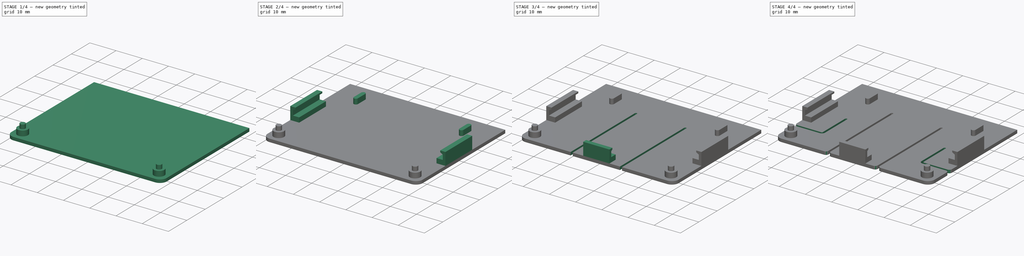
[diagram: build sequence overview — one tinted view per stage of 4, left to right]
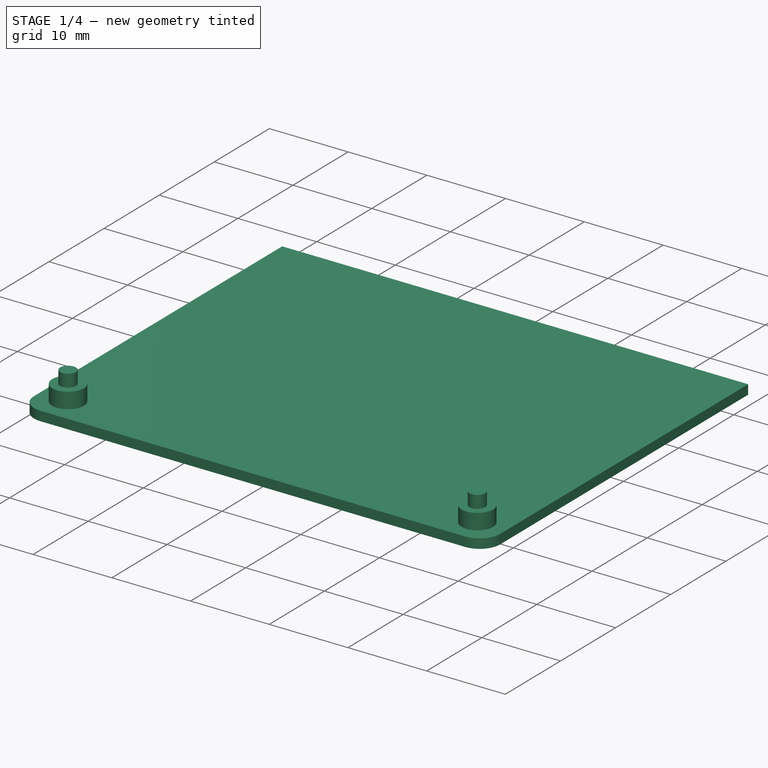
[diagram: stage 1 of 4 — iso view after this stage's code; geometry added in this stage tinted green]
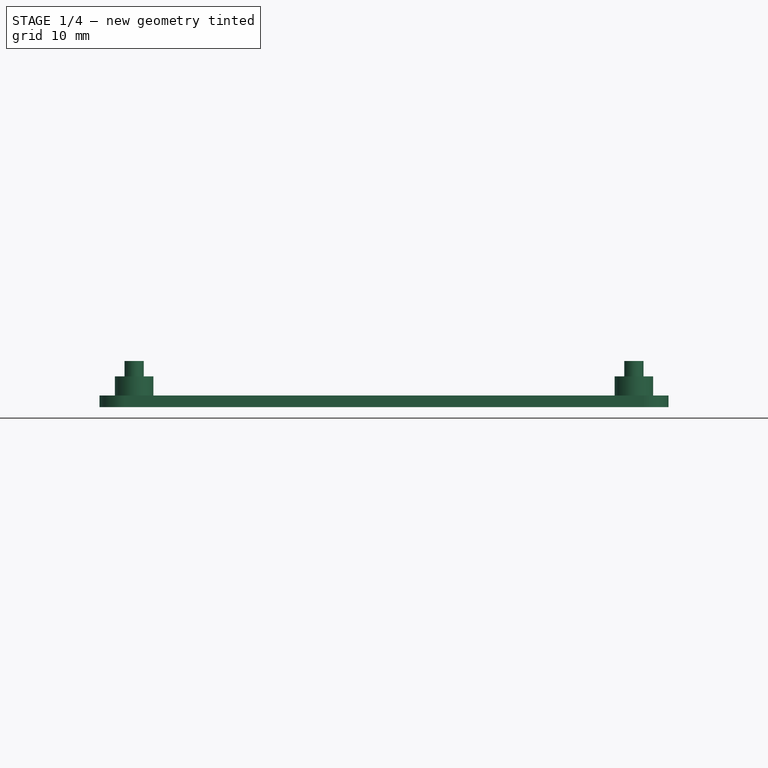
[diagram: stage 1 of 4 — front view after this stage's code; geometry added in this stage tinted green]
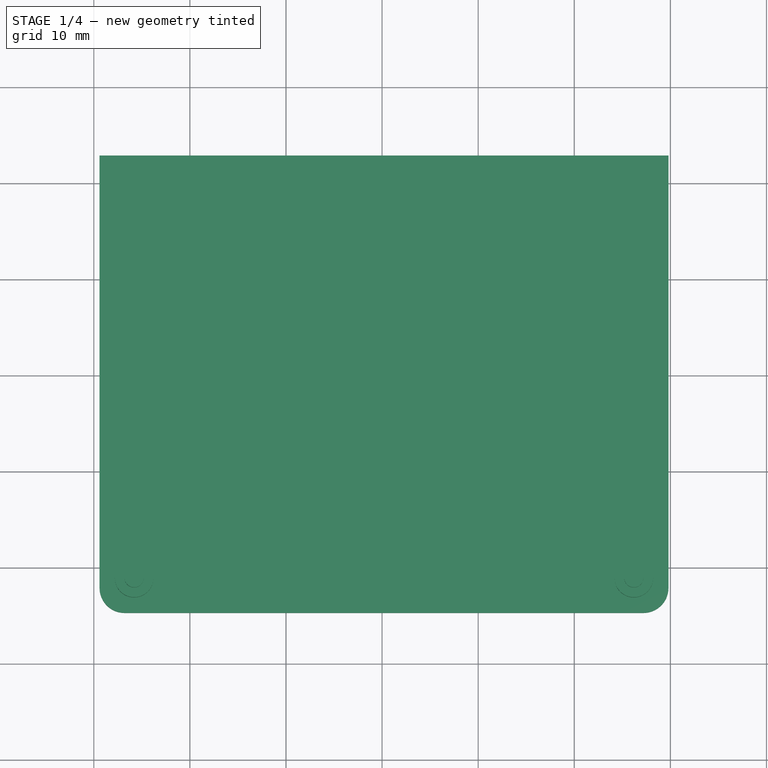
[diagram: stage 1 of 4 — top view after this stage's code; geometry added in this stage tinted green]
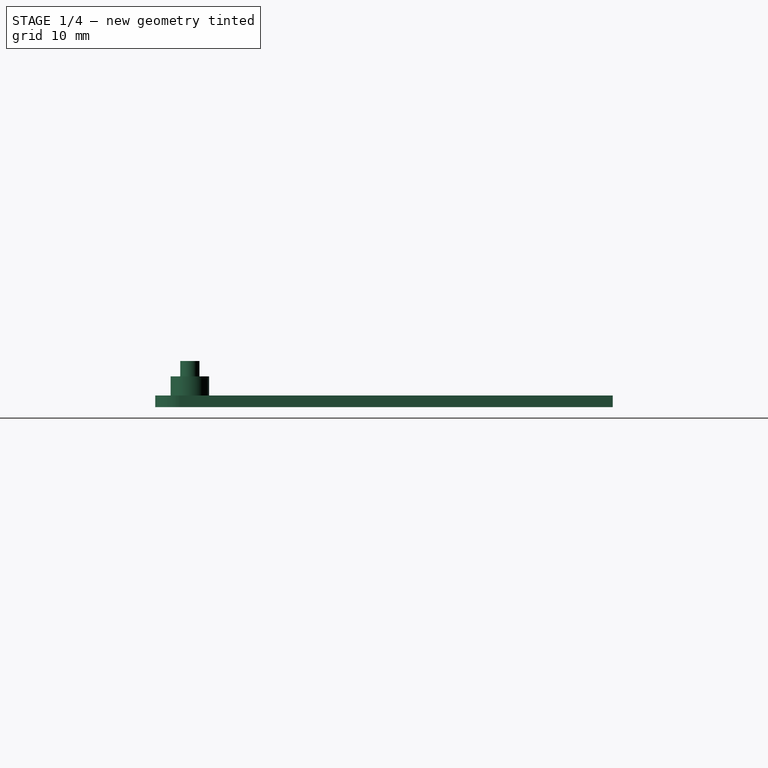
[diagram: stage 1 of 4 — right view after this stage's code; geometry added in this stage tinted green]
FCSTD DOCUMENT  (FreeCAD 0.20R29177 (Git))
Label: backplate
License: All rights reserved
LicenseURL: http://en.wikipedia.org/wiki/All_rights_reserved
objects: Sketcher::SketchObject×10, PartDesign::Pad×7, PartDesign::Pocket×3, Part::Feature×1, App::Part×1, PartDesign::ShapeBinder×1, PartDesign::Fillet×1, PartDesign::Body×1
note: 35 computed .brp shape members not serialized (recipe doc carries the construction recipe); baked Part::Feature solids carry a one-line shape summary decoded from their .brp

FEATURE [Part::Feature] Part__Feature  label="PiPico_game_board PCB"
  Placement = pos=(-55.3,69.4,0) rot=(0,0,1;0rad)
  shape: bbox 57 x 98.5 x 1.6 mm, 143 faces (baked)
FEATURE [App::Part] PiPico_game_board_1  label="PiPico_game_board 1"
  Group = -> [Part__Feature]
  Origin = -> Origin001
FEATURE [PartDesign::ShapeBinder] ShapeBinder
  Placement = pos=(-55.3,69.4,0) rot=(0,0,1;0rad)
  Support = -> [Part__Feature]
  TraceSupport = false
FEATURE [Sketcher::SketchObject] Sketch
  AttachmentOffset = pos=(0,0,-2) rot=(0,0,1;0rad)
  ExternalGeometry = -> [ShapeBinder]
  FullyConstrained = true
  MapMode = 5
  Placement = pos=(0,0,-2) rot=(0,0,1;0rad)
  Support = -> [XY_Plane]
  sketch-geometry (13):
    g0: LineSegment StartX=-28.3 StartY=-7.1 StartZ=0 EndX=28.7 EndY=-7.1 EndZ=0
    g1: LineSegment StartX=-26.8 StartY=-54.7 StartZ=0 EndX=27.2 EndY=-54.7 EndZ=0
    g2: LineSegment StartX=27.2 StartY=-53.6 StartZ=0 EndX=27.2 EndY=-54.7 EndZ=0
    g3: LineSegment StartX=-26.8 StartY=-53.6 StartZ=0 EndX=-26.8 EndY=-54.7 EndZ=0
    g4: ArcOfCircle CenterX=-26.8 CenterY=-52.1 CenterZ=0 NormalX=0 NormalY=0 NormalZ=1 AngleXU=0 Radius=2.6 StartAngle=3.14159 EndAngle=4.71239
    g5: LineSegment StartX=-28.3 StartY=-52.1 StartZ=0 EndX=-29.4 EndY=-52.1 EndZ=0
    g6: ArcOfCircle CenterX=27.2 CenterY=-52.1 CenterZ=0 NormalX=0 NormalY=0 NormalZ=1 AngleXU=0 Radius=2.6 StartAngle=4.71239 EndAngle=6.28319
    g7: LineSegment StartX=28.7 StartY=-52.1 StartZ=0 EndX=29.8 EndY=-52.1 EndZ=0
    g8: LineSegment StartX=-29.4 StartY=-7.1 StartZ=0 EndX=-28.3 EndY=-7.1 EndZ=0
    g9: LineSegment StartX=28.7 StartY=-7.1 StartZ=0 EndX=29.8 EndY=-7.1 EndZ=0
    g10: GeomPoint X=0.2 Y=-7.1 Z=0
    g11: LineSegment StartX=-29.4 StartY=-52.1 StartZ=0 EndX=-29.4 EndY=-7.1 EndZ=0
    g12: LineSegment StartX=29.8 StartY=-7.1 StartZ=0 EndX=29.8 EndY=-52.1 EndZ=0
  constraints (33):
    c: PointOnObject(g0,g-3)
    c: PointOnObject(g0,g-7)
    c: Horizontal(g0)
    c: Horizontal(g1)
    c: Coincident(g2,g-9)
    c: Coincident(g2,g1)
    c: Coincident(g3,g-10)
    c: Coincident(g3,g1)
    c: Vertical(g3)
    c: Vertical(g2)
    c: Coincident(g4,g-10)
    c: Coincident(g4,g1)
    c: Coincident(g5,g-10)
    c: Coincident(g5,g4)
    c: Horizontal(g5)
    c: Coincident(g6,g-8)
    c: Coincident(g6,g1)
    c: Coincident(g7,g-8)
    c: Coincident(g7,g6)
    c: Horizontal(g7)
    c: Coincident(g8,g11)
    c: Coincident(g8,g0)
    c: Horizontal(g8)
    c: Coincident(g9,g0)
    c: Horizontal(g9)
    c: Coincident(g12,g6)
    c: DistanceX(g5,g5) = 1.1
    c: DistanceY(g4,g11) = 45
    c: Symmetric(g11,g9,g10)
    c: Vertical(g12)
    c: Vertical(g11)
    c: Coincident(g12,g9)
    c: Coincident(g11,g4)
FEATURE [PartDesign::Pad] Pad
  Direction = (0,0,1)
  Length = 1.2
  Length2 = 10
  Profile = -> Sketch
  ReferenceAxis = -> Sketch [N_Axis]
  Reversed = true
  Type = 0
FEATURE [Sketcher::SketchObject] Sketch001
  ExternalGeometry = -> [ShapeBinder]
  FullyConstrained = true
  MapMode = 5
  Placement = pos=(0,0,-2) rot=(0,0,1;0rad)
  Support = -> [Pad]
  sketch-geometry (2):
    g0: Circle CenterX=-25.8 CenterY=-51.1 CenterZ=0 NormalX=0 NormalY=0 NormalZ=1 AngleXU=0 Radius=2
    g1: Circle CenterX=26.2 CenterY=-51.1 CenterZ=0 NormalX=0 NormalY=0 NormalZ=1 AngleXU=0 Radius=2
  constraints (4):
    c: Coincident(g0,g-3)
    c: Diameter(g0) = 4
    c: Coincident(g1,g-4)
    c: Diameter(g1) = 4
FEATURE [PartDesign::Pad] Pad001
  BaseFeature = -> Pad
  Direction = (0,0,1)
  Length = 10
  Length2 = 10
  Profile = -> Sketch001
  ReferenceAxis = -> Sketch001 [N_Axis]
  Type = 3
  UpToFace = -> ShapeBinder [Face4]
FEATURE [Sketcher::SketchObject] Sketch002
  ExternalGeometry = -> [ShapeBinder]
  FullyConstrained = true
  MapMode = 5
  Support = -> [Pad001]
  sketch-geometry (2):
    g0: Circle CenterX=-25.8 CenterY=-51.1 CenterZ=0 NormalX=0 NormalY=0 NormalZ=1 AngleXU=0 Radius=1
    g1: Circle CenterX=26.2 CenterY=-51.1 CenterZ=0 NormalX=0 NormalY=0 NormalZ=1 AngleXU=0 Radius=1
  constraints (4):
    c: Coincident(g0,g-3)
    c: Diameter(g0) = 2
    c: Coincident(g1,g-4)
    c: Diameter(g1) = 2
FEATURE [PartDesign::Pad] Pad002
  BaseFeature = -> Pad001
  Direction = (0,0,1)
  Length = 1.6
  Length2 = 10
  Profile = -> Sketch002
  ReferenceAxis = -> Sketch002 [N_Axis]
  Type = 0
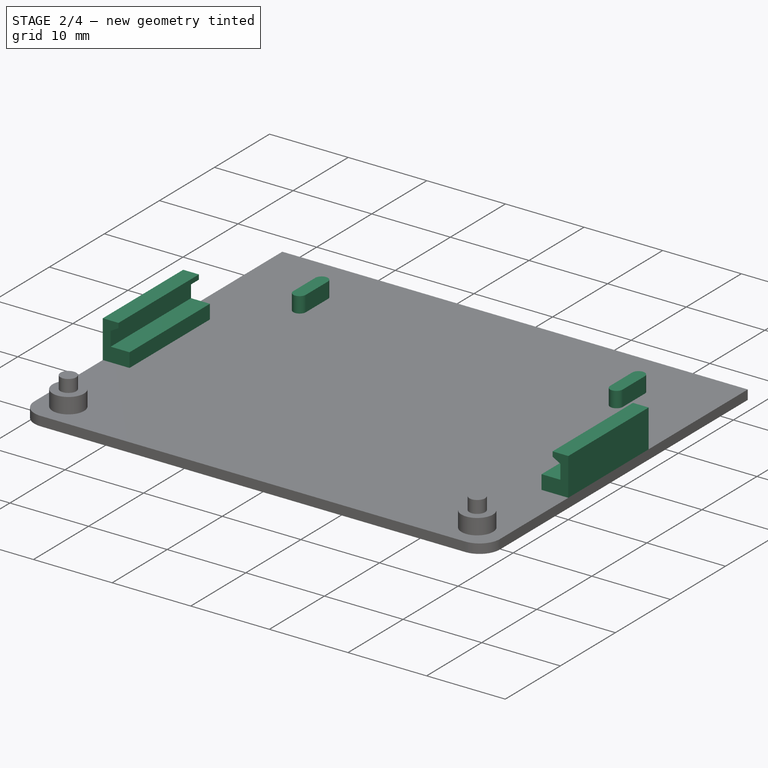
[diagram: stage 2 of 4 — iso view after this stage's code; geometry added in this stage tinted green]
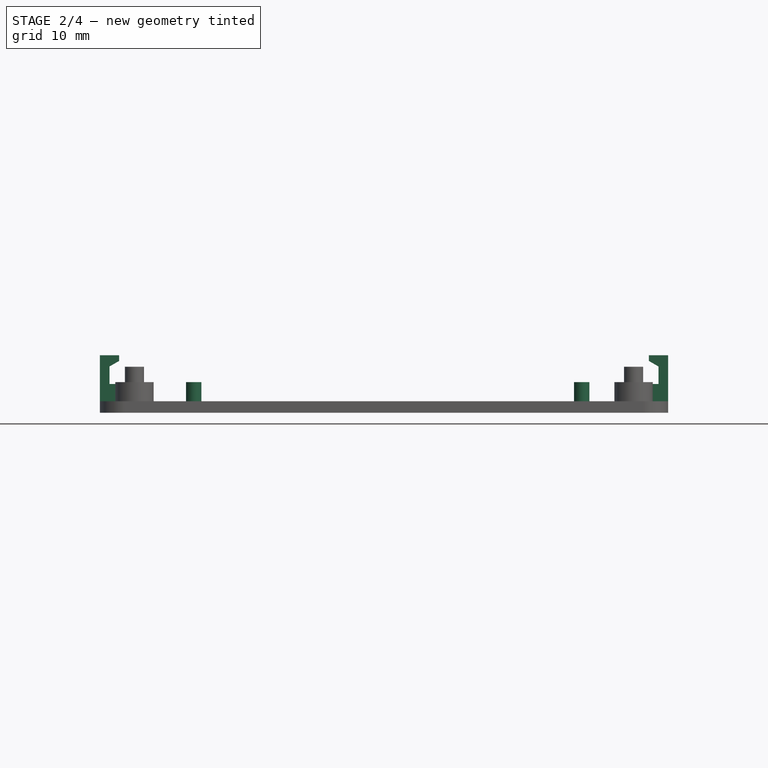
[diagram: stage 2 of 4 — front view after this stage's code; geometry added in this stage tinted green]
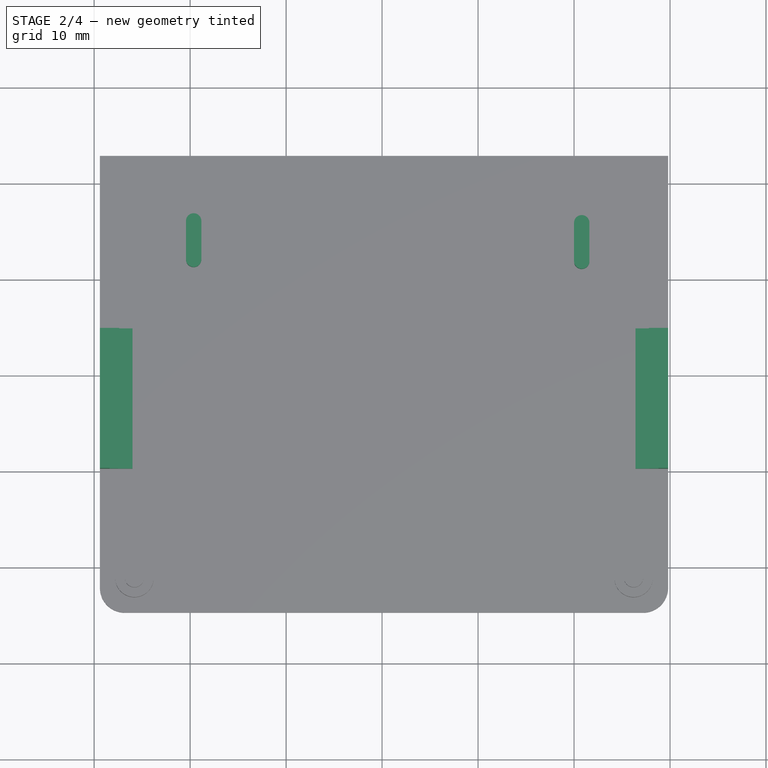
[diagram: stage 2 of 4 — top view after this stage's code; geometry added in this stage tinted green]
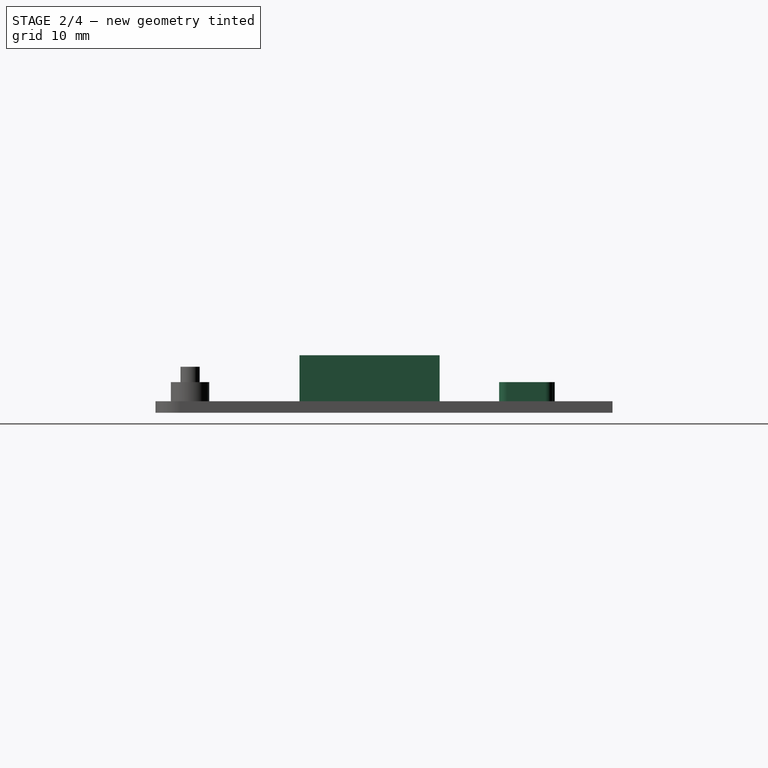
[diagram: stage 2 of 4 — right view after this stage's code; geometry added in this stage tinted green]
FEATURE [Sketcher::SketchObject] Sketch004
  AttachmentOffset = pos=(0,0,-18) rot=(0,0,1;0rad)
  ExternalGeometry = -> [ShapeBinder,Pad002]
  FullyConstrained = true
  MapMode = 5
  Placement = pos=(0,-25.1,4e-15) rot=(0,0.707107,0.707107;3.14159rad)
  Support = -> [Pad002]
  sketch-geometry (8):
    g0: LineSegment StartX=29.4 StartY=-2 StartZ=0 EndX=29.4 EndY=2.8 EndZ=0
    g1: LineSegment StartX=29.4 StartY=2.8 StartZ=0 EndX=27.4 EndY=2.8 EndZ=0
    g2: LineSegment StartX=27.4 StartY=2.8 StartZ=0 EndX=27.4 EndY=2.2 EndZ=0
    g3: LineSegment StartX=27.4 StartY=2.2 StartZ=0 EndX=28.4 EndY=1.62265 EndZ=0
    g4: LineSegment StartX=28.4 StartY=1.62265 StartZ=0 EndX=28.4 EndY=-0.2 EndZ=0
    g5: LineSegment StartX=28.4 StartY=-0.2 StartZ=0 EndX=26 EndY=-0.2 EndZ=0
    g6: LineSegment StartX=26 StartY=-0.2 StartZ=0 EndX=26 EndY=-2 EndZ=0
    g7: LineSegment StartX=26 StartY=-2 StartZ=0 EndX=29.4 EndY=-2 EndZ=0
  constraints (23):
    c: Coincident(g6,g7)
    c: Coincident(g5,g6)
    c: Coincident(g2,g3)
    c: Coincident(g1,g2)
    c: Coincident(g4,g5)
    c: Coincident(g3,g4)
    c: Coincident(g0,g7)
    c: Coincident(g0,g1)
    c: Coincident(g0,g-5)
    c: Horizontal(g7)
    c: Horizontal(g5)
    c: Vertical(g6)
    c: Vertical(g4)
    c: Vertical(g0)
    c: Horizontal(g1)
    c: Vertical(g2)
    c: Angle(g3,g4) = 2.0944
    c: DistanceY(g-4,g2) = 0.6
    c: DistanceX(g-4,g3) = 0.1
    c: DistanceX(g1,g1) = 2
    c: DistanceY(g2,g2) = 0.6
    c: DistanceX(g5,g5) = 2.4
    c: DistanceY(g5,g-3) = 0.2
FEATURE [Sketcher::SketchObject] MirroredSketch
  AttachmentOffset = pos=(0,0,-18) rot=(0,0,1;0rad)
  ExternalGeometry = -> [ShapeBinder,Pad002]
  FullyConstrained = true
  MapMode = 5
  Placement = pos=(0,-25.1,4e-15) rot=(0,0.707107,0.707107;3.14159rad)
  Support = -> [Pad002]
  sketch-geometry (8):
    g0: LineSegment StartX=-29.8 StartY=-2 StartZ=0 EndX=-29.8 EndY=2.8 EndZ=0
    g1: LineSegment StartX=-29.8 StartY=2.8 StartZ=0 EndX=-27.8 EndY=2.8 EndZ=0
    g2: LineSegment StartX=-27.8 StartY=2.8 StartZ=0 EndX=-27.8 EndY=2.2 EndZ=0
    g3: LineSegment StartX=-27.8 StartY=2.2 StartZ=0 EndX=-28.8 EndY=1.62265 EndZ=0
    g4: LineSegment StartX=-28.8 StartY=1.62265 StartZ=0 EndX=-28.8 EndY=-0.2 EndZ=0
    g5: LineSegment StartX=-28.8 StartY=-0.2 StartZ=0 EndX=-26.4 EndY=-0.2 EndZ=0
    g6: LineSegment StartX=-26.4 StartY=-0.2 StartZ=0 EndX=-26.4 EndY=-2 EndZ=0
    g7: LineSegment StartX=-26.4 StartY=-2 StartZ=0 EndX=-29.8 EndY=-2 EndZ=0
  constraints (23):
    c: Coincident(g0,g7)
    c: Coincident(g0,g1)
    c: Coincident(g4,g5)
    c: Coincident(g3,g4)
    c: Coincident(g2,g3)
    c: Coincident(g1,g2)
    c: Coincident(g6,g7)
    c: Coincident(g5,g6)
    c: Coincident(g0,g-5)
    c: Horizontal(g7)
    c: Vertical(g6)
    c: Vertical(g0)
    c: Vertical(g4)
    c: Horizontal(g1)
    c: Horizontal(g5)
    c: Vertical(g2)
    c: Angle(g4,g3) = 2.0944
    c: DistanceY(g2,g2) = 0.6
    c: DistanceX(g1,g1) = 2
    c: DistanceY(g-3,g2) = 0.6
    c: DistanceX(g3,g-3) = 0.1
    c: DistanceY(g5,g-4) = 0.2
    c: DistanceX(g5,g5) = 2.4
FEATURE [PartDesign::Pad] Pad004
  BaseFeature = -> Pad002
  Direction = (0,1,-2e-16)
  Length = 10
  Length2 = 10
  Offset = -15
  Profile = -> Sketch004
  ReferenceAxis = -> Sketch004 [N_Axis]
  Reversed = true
  Type = 3
  UpToFace = -> Pad002 [Face6]
FEATURE [PartDesign::Pad] Pad005
  BaseFeature = -> Pad004
  Direction = (0,1,-2e-16)
  Length = 10
  Length2 = 10
  Profile = -> MirroredSketch
  ReferenceAxis = -> MirroredSketch [N_Axis]
  Reversed = true
  Type = 3
  UpToFace = -> Pad004 [Face9]
FEATURE [Sketcher::SketchObject] Sketch006
  ExternalGeometry = -> [Pad005]
  FullyConstrained = true
  MapMode = 5
  Placement = pos=(0,0,-2) rot=(0,0,1;0rad)
  Support = -> [Pad005]
  sketch-geometry (8):
    g0: ArcOfCircle CenterX=-19.63 CenterY=-13.91 CenterZ=0 NormalX=0 NormalY=0 NormalZ=1 AngleXU=0 Radius=0.8 StartAngle=0 EndAngle=3.14159
    g1: ArcOfCircle CenterX=-19.63 CenterY=-17.91 CenterZ=0 NormalX=0 NormalY=0 NormalZ=1 AngleXU=0 Radius=0.8 StartAngle=3.14159 EndAngle=6.28319
    g2: LineSegment StartX=-20.43 StartY=-13.91 StartZ=0 EndX=-20.43 EndY=-17.91 EndZ=0
    g3: LineSegment StartX=-18.83 StartY=-17.91 StartZ=0 EndX=-18.83 EndY=-13.91 EndZ=0
    g4: ArcOfCircle CenterX=20.8 CenterY=-14.1 CenterZ=0 NormalX=0 NormalY=0 NormalZ=1 AngleXU=0 Radius=0.8 StartAngle=0 EndAngle=3.14159
    g5: ArcOfCircle CenterX=20.8 CenterY=-18.1 CenterZ=0 NormalX=0 NormalY=0 NormalZ=1 AngleXU=0 Radius=0.8 StartAngle=3.14159 EndAngle=6.28319
    g6: LineSegment StartX=20 StartY=-14.1 StartZ=0 EndX=20 EndY=-18.1 EndZ=0
    g7: LineSegment StartX=21.6 StartY=-18.1 StartZ=0 EndX=21.6 EndY=-14.1 EndZ=0
  constraints (20):
    c: Tangent(g0,g2) = -1.5708
    c: Tangent(g2,g1) = -1.5708
    c: Tangent(g1,g3) = -1.5708
    c: Tangent(g3,g0) = -1.5708
    c: Equal(g0,g1)
    c: Vertical(g2)
    c: Tangent(g4,g6) = -1.5708
    c: Tangent(g6,g5) = -1.5708
    c: Tangent(g5,g7) = -1.5708
    c: Tangent(g7,g4) = -1.5708
    c: Equal(g4,g5)
    c: Vertical(g6)
    c: DistanceX(g0,g0) = 1.6
    c: DistanceY(g3,g3) = 4
    c: DistanceX(g4,g4) = 1.6
    c: DistanceY(g7,g7) = 4
    c: DistanceY(g0,g-3) = 6.81
    c: DistanceX(g-3,g0) = 9.77
    c: DistanceY(g4,g-4) = 7
    c: DistanceX(g4,g-4) = 9
FEATURE [PartDesign::Pad] Pad006
  BaseFeature = -> Pad005
  Direction = (0,0,1)
  Length = 10
  Length2 = 10
  Profile = -> Sketch006
  ReferenceAxis = -> Sketch006 [N_Axis]
  Type = 3
  UpToFace = -> ShapeBinder [Face4]
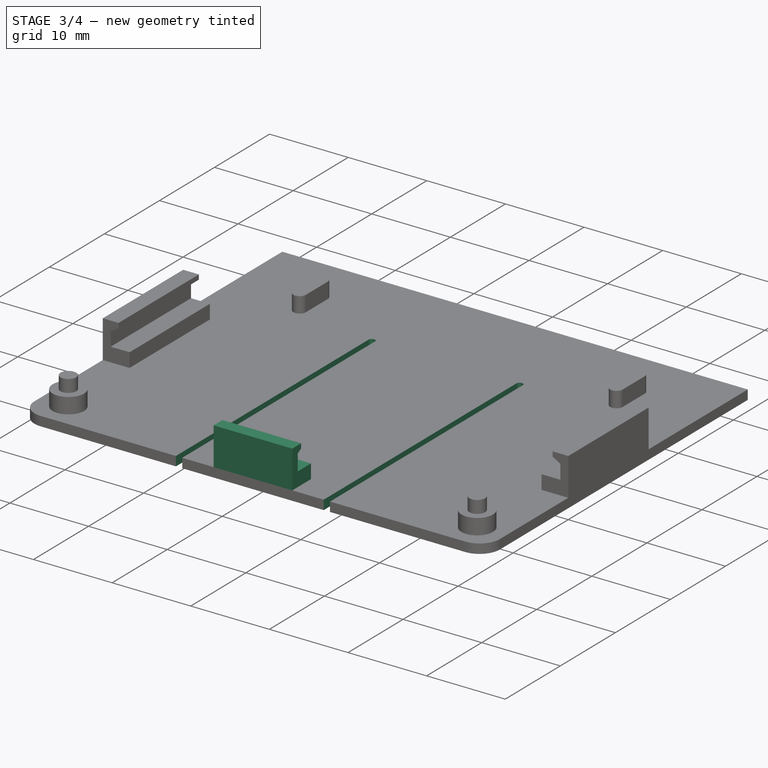
[diagram: stage 3 of 4 — iso view after this stage's code; geometry added in this stage tinted green]
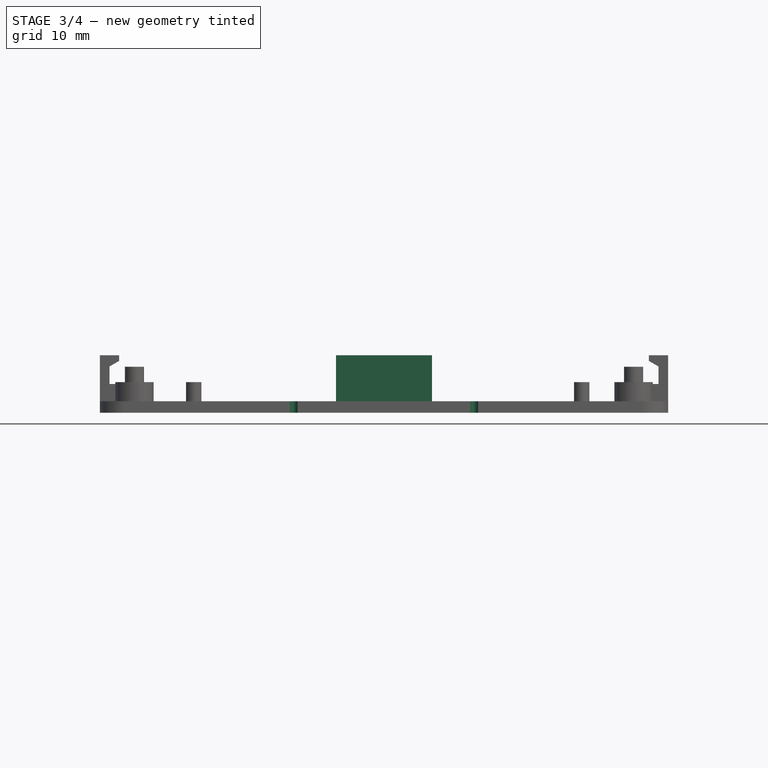
[diagram: stage 3 of 4 — front view after this stage's code; geometry added in this stage tinted green]
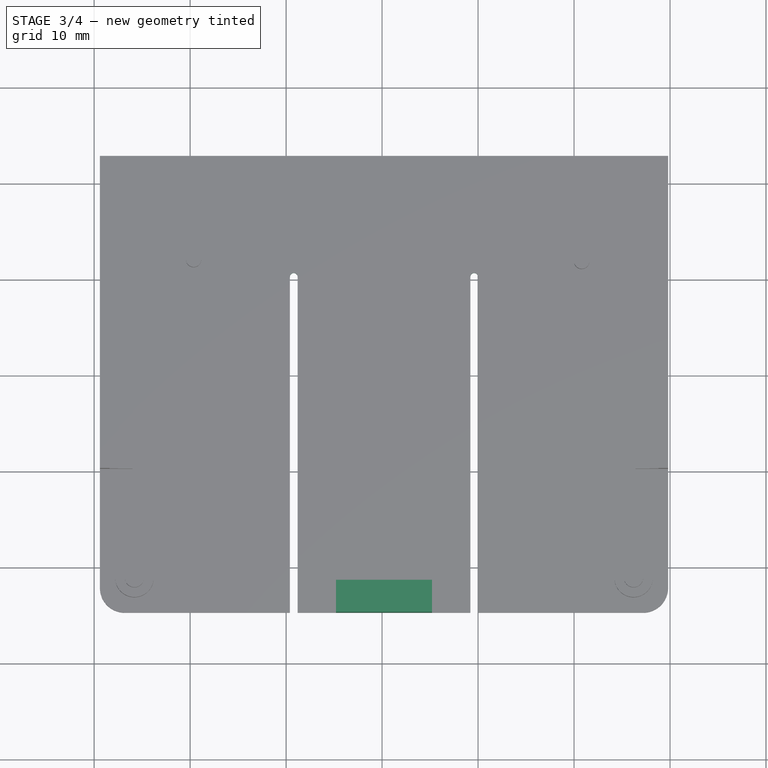
[diagram: stage 3 of 4 — top view after this stage's code; geometry added in this stage tinted green]
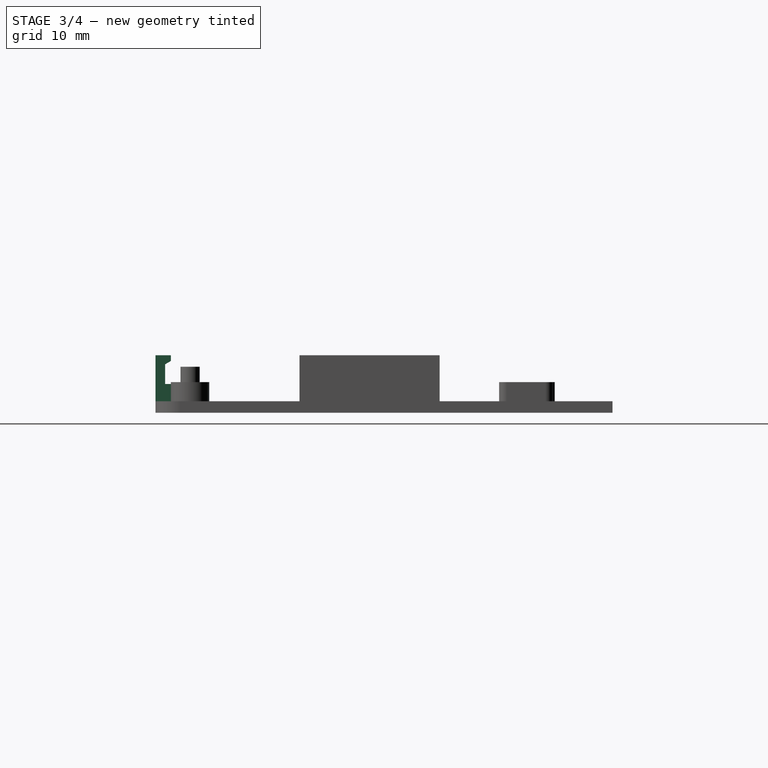
[diagram: stage 3 of 4 — right view after this stage's code; geometry added in this stage tinted green]
FEATURE [Sketcher::SketchObject] Sketch007
  AttachmentOffset = pos=(0,0,-24.6) rot=(0,0,1;0rad)
  ExternalGeometry = -> [ShapeBinder,Pad006]
  FullyConstrained = true
  MapMode = 5
  Placement = pos=(-4.8,0,0) rot=(0.57735,-0.57735,-0.57735;2.0944rad)
  Support = -> [Pad006]
  sketch-geometry (8):
    g0: LineSegment StartX=54.7 StartY=-2 StartZ=0 EndX=54.7 EndY=2.8 EndZ=0
    g1: LineSegment StartX=54.7 StartY=2.8 StartZ=0 EndX=53.1 EndY=2.8 EndZ=0
    g2: LineSegment StartX=53.1 StartY=2.8 StartZ=0 EndX=53.1 EndY=2.2 EndZ=0
    g3: LineSegment StartX=53.1 StartY=2.2 StartZ=0 EndX=53.7 EndY=1.85359 EndZ=0
    g4: LineSegment StartX=53.7 StartY=1.85359 StartZ=0 EndX=53.7 EndY=-0.2 EndZ=0
    g5: LineSegment StartX=51.3 StartY=-2 StartZ=0 EndX=54.7 EndY=-2 EndZ=0
    g6: LineSegment StartX=53.7 StartY=-0.2 StartZ=0 EndX=51.3 EndY=-0.2 EndZ=0
    g7: LineSegment StartX=51.3 StartY=-0.2 StartZ=0 EndX=51.3 EndY=-2 EndZ=0
  constraints (23):
    c: Vertical(g0)
    c: Coincident(g1,g0)
    c: Horizontal(g1)
    c: Coincident(g2,g1)
    c: Vertical(g2)
    c: Coincident(g3,g2)
    c: Coincident(g4,g3)
    c: Vertical(g4)
    c: Angle(g3,g4) = 2.0944
    c: DistanceY(g2,g2) = 0.6
    c: DistanceY(g-3,g2) = 0.6
    c: DistanceX(g-3,g3) = 0.1
    c: DistanceX(g1,g1) = 1.6
    c: Coincident(g0,g5)
    c: Coincident(g0,g-5)
    c: PointOnObject(g5,g-5)
    c: Coincident(g6,g4)
    c: Horizontal(g6)
    c: Coincident(g7,g6)
    c: Coincident(g7,g5)
    c: Vertical(g7)
    c: DistanceX(g6,g6) = 2.4
    c: DistanceY(g6,g-4) = 0.2
FEATURE [PartDesign::Pad] Pad007
  BaseFeature = -> Pad006
  Direction = (-1,0,0)
  Length = 10
  Length2 = 10
  Profile = -> Sketch007
  ReferenceAxis = -> Sketch007 [N_Axis]
  Reversed = true
  Type = 0
FEATURE [Sketcher::SketchObject] Sketch008
  ExternalGeometry = -> [Pad007]
  FullyConstrained = true
  MapMode = 5
  Placement = pos=(0,0,-2) rot=(0,0,1;0rad)
  Support = -> [Pad007]
  sketch-geometry (11):
    g0: ArcOfCircle CenterX=-9.2 CenterY=-19.7 CenterZ=0 NormalX=0 NormalY=0 NormalZ=1 AngleXU=0 Radius=0.4 StartAngle=-1.8e-15 EndAngle=3.14159
    g1: LineSegment StartX=-8.8 StartY=-54.7 StartZ=0 EndX=-8.8 EndY=-19.7 EndZ=0
    g2: LineSegment StartX=-9.6 StartY=-19.7 StartZ=0 EndX=-9.6 EndY=-54.7 EndZ=0
    g3: ArcOfCircle CenterX=9.6 CenterY=-19.7 CenterZ=0 NormalX=0 NormalY=0 NormalZ=1 AngleXU=0 Radius=0.4 StartAngle=0 EndAngle=3.14159
    g4: LineSegment StartX=10 StartY=-54.7 StartZ=0 EndX=10 EndY=-19.7 EndZ=0
    g5: LineSegment StartX=9.2 StartY=-19.7 StartZ=0 EndX=9.2 EndY=-54.7 EndZ=0
    g6: LineSegment StartX=-9.6 StartY=-54.7 StartZ=0 EndX=-8.8 EndY=-54.7 EndZ=0
    g7: LineSegment StartX=9.2 StartY=-54.7 StartZ=0 EndX=10 EndY=-54.7 EndZ=0
    g8: LineSegment StartX=-9.2 StartY=-19.7 StartZ=0 EndX=9.6 EndY=-19.7 EndZ=0
    g9: LineSegment StartX=-8.8 StartY=-54.7 StartZ=0 EndX=-4.8 EndY=-54.7 EndZ=0
    g10: LineSegment StartX=5.2 StartY=-54.7 StartZ=0 EndX=9.2 EndY=-54.7 EndZ=0
  constraints (28):
    c: Tangent(g1,g0) = -1.5708
    c: Tangent(g0,g2) = -1.5708
    c: Vertical(g1)
    c: Tangent(g4,g3) = -1.5708
    c: Tangent(g3,g5) = -1.5708
    c: Vertical(g4)
    c: DistanceX(g2,g1) = 0.8
    c: Vertical(g2)
    c: Coincident(g6,g2)
    c: Coincident(g6,g1)
    c: Horizontal(g6)
    c: Coincident(g7,g5)
    c: Coincident(g7,g4)
    c: Horizontal(g7)
    c: DistanceX(g7,g7) = 0.8
    c: Vertical(g5)
    c: Coincident(g8,g0)
    c: Coincident(g8,g3)
    c: Horizontal(g8)
    c: DistanceY(g2,g2) = 35
    c: Coincident(g9,g1)
    c: Coincident(g9,g-3)
    c: Coincident(g10,g-3)
    c: Coincident(g10,g5)
    c: Horizontal(g10)
    c: Horizontal(g9)
    c: DistanceX(g10,g10) = 4
    c: DistanceX(g9,g9) = 4
FEATURE [PartDesign::Pocket] Pocket
  BaseFeature = -> Pad007
  Direction = (0,0,-1)
  Length = 5
  Length2 = 5
  Profile = -> Sketch008
  ReferenceAxis = -> Sketch008 [N_Axis]
  Type = 1
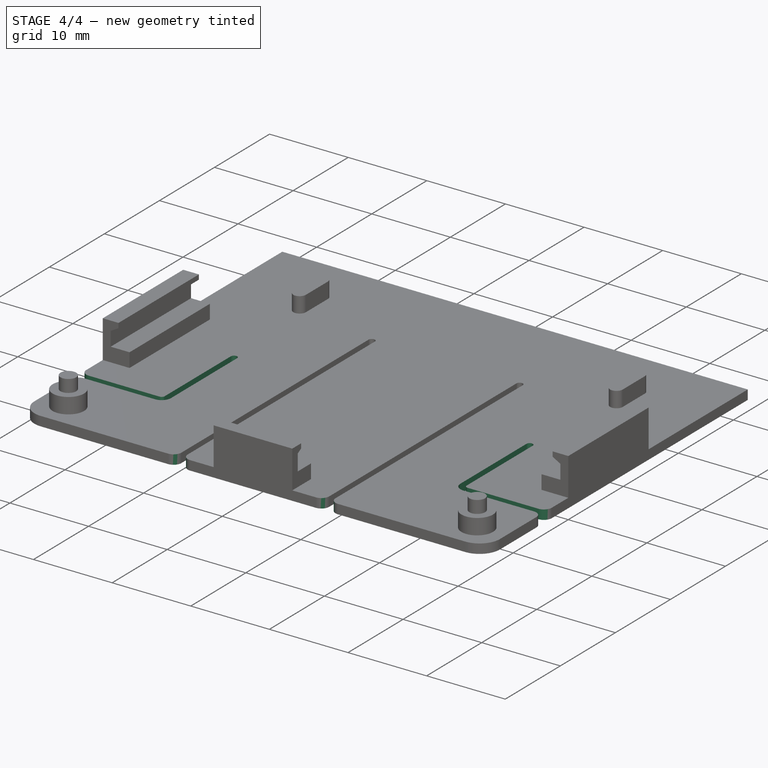
[diagram: stage 4 of 4 — iso view after this stage's code; geometry added in this stage tinted green]
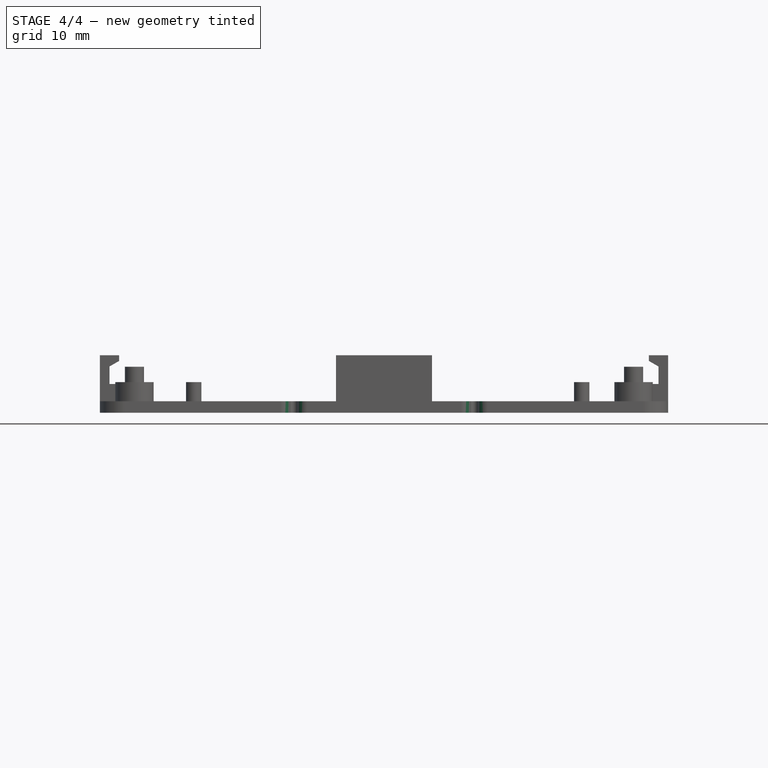
[diagram: stage 4 of 4 — front view after this stage's code; geometry added in this stage tinted green]
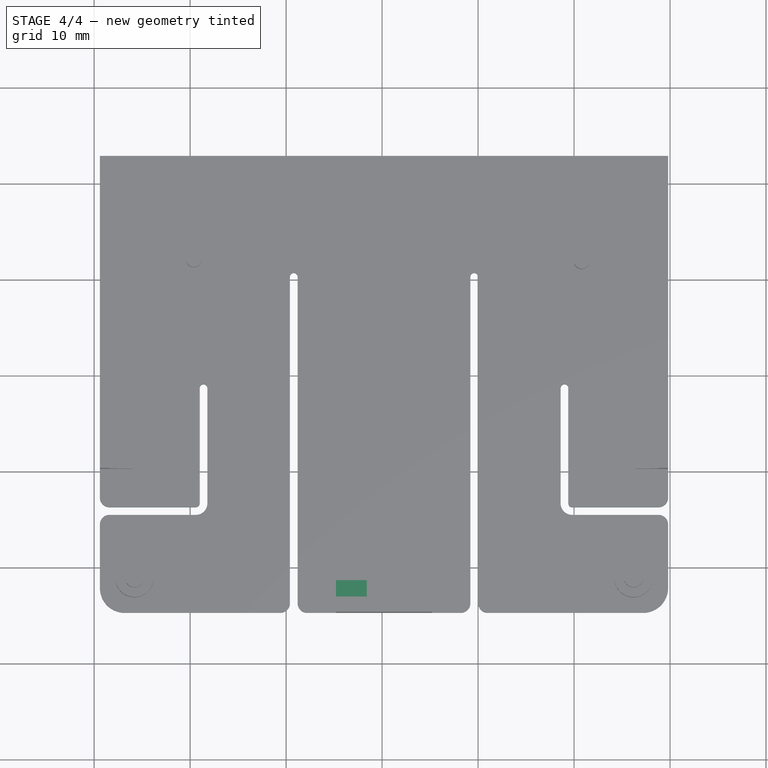
[diagram: stage 4 of 4 — top view after this stage's code; geometry added in this stage tinted green]
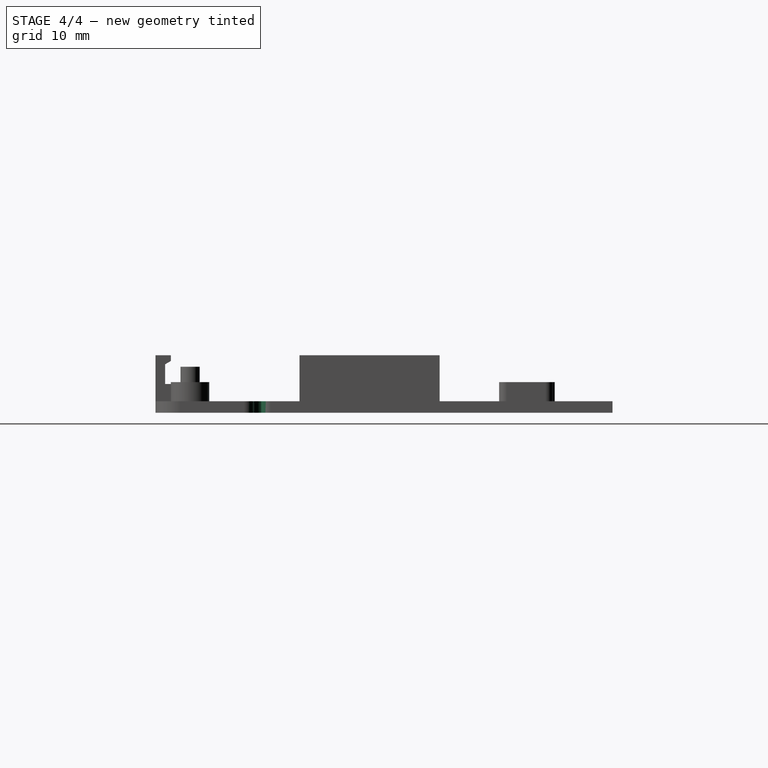
[diagram: stage 4 of 4 — right view after this stage's code; geometry added in this stage tinted green]
FEATURE [Sketcher::SketchObject] Sketch009
  ExternalGeometry = -> [Pocket]
  FullyConstrained = true
  MapMode = 5
  Placement = pos=(0,0,-0.2) rot=(0,0,1;0rad)
  Support = -> [Pocket]
  sketch-geometry (4):
    g0: LineSegment StartX=-4.8 StartY=-51.3 StartZ=0 EndX=-1.6 EndY=-51.3 EndZ=0
    g1: LineSegment StartX=-1.6 StartY=-51.3 StartZ=0 EndX=-1.6 EndY=-53.7 EndZ=0
    g2: LineSegment StartX=-1.6 StartY=-53.7 StartZ=0 EndX=-4.8 EndY=-53.7 EndZ=0
    g3: LineSegment StartX=-4.8 StartY=-53.7 StartZ=0 EndX=-4.8 EndY=-51.3 EndZ=0
  constraints (10):
    c: Coincident(g0,g1)
    c: Coincident(g1,g2)
    c: Coincident(g2,g3)
    c: Coincident(g3,g0)
    c: Horizontal(g0)
    c: Horizontal(g2)
    c: Vertical(g1)
    c: Coincident(g0,g-3)
    c: Coincident(g-3,g2)
    c: DistanceX(g2,g2) = 3.2
FEATURE [PartDesign::Pocket] Pocket001
  BaseFeature = -> Pocket
  Direction = (0,0,-1)
  Length = 0
  Length2 = 5
  Profile = -> Sketch009
  ReferenceAxis = -> Sketch009 [N_Axis]
  Type = 3
  UpToFace = -> Pocket [Face4]
FEATURE [Sketcher::SketchObject] Sketch010
  ExternalGeometry = -> [Pocket001]
  FullyConstrained = true
  MapMode = 5
  Placement = pos=(0,0,-2) rot=(0,0,1;0rad)
  Support = -> [Pocket001]
  sketch-geometry (28):
    g0: LineSegment StartX=-29.4 StartY=-44.5 StartZ=0 EndX=-19.4 EndY=-44.5 EndZ=0
    g1: LineSegment StartX=-19.4 StartY=-43.7 StartZ=0 EndX=-29.4 EndY=-43.7 EndZ=0
    g2: LineSegment StartX=-29.4 StartY=-43.7 StartZ=0 EndX=-29.4 EndY=-44.5 EndZ=0
    g3: ArcOfCircle CenterX=-19.4 CenterY=-43.3 CenterZ=0 NormalX=0 NormalY=0 NormalZ=1 AngleXU=0 Radius=1.2 StartAngle=4.71239 EndAngle=6.28319
    g4: ArcOfCircle CenterX=-19.4 CenterY=-43.3 CenterZ=0 NormalX=0 NormalY=0 NormalZ=1 AngleXU=0 Radius=0.4 StartAngle=4.71239 EndAngle=6.28319
    g5: LineSegment StartX=-19.4 StartY=-43.3 StartZ=0 EndX=-19 EndY=-43.3 EndZ=0
    g6: LineSegment StartX=-19.4 StartY=-43.3 StartZ=0 EndX=-19.4 EndY=-43.7 EndZ=0
    g7: LineSegment StartX=-19.4 StartY=-43.3 StartZ=0 EndX=-18.2 EndY=-43.3 EndZ=0
    g8: LineSegment StartX=-19.4 StartY=-43.3 StartZ=0 EndX=-19.4 EndY=-44.5 EndZ=0
    g9: LineSegment StartX=-18.2 StartY=-43.3 StartZ=0 EndX=-18.2 EndY=-31.3 EndZ=0
    g10: ArcOfCircle CenterX=-18.6 CenterY=-31.3 CenterZ=0 NormalX=0 NormalY=0 NormalZ=1 AngleXU=0 Radius=0.4 StartAngle=9e-16 EndAngle=3.14159
    g11: LineSegment StartX=-19 StartY=-31.3 StartZ=0 EndX=-19 EndY=-43.3 EndZ=0
    g12: LineSegment StartX=-19 StartY=-31.3 StartZ=0 EndX=-18.6 EndY=-31.3 EndZ=0
    g13: LineSegment StartX=-18.6 StartY=-31.3 StartZ=0 EndX=-18.2 EndY=-31.3 EndZ=0
    g14: LineSegment StartX=29.8 StartY=-44.5 StartZ=0 EndX=19.8 EndY=-44.5 EndZ=0
    g15: ArcOfCircle CenterX=19.8 CenterY=-43.3 CenterZ=0 NormalX=0 NormalY=0 NormalZ=1 AngleXU=0 Radius=1.2 StartAngle=3.14159 EndAngle=4.71239
    g16: ArcOfCircle CenterX=19.8 CenterY=-43.3 CenterZ=0 NormalX=0 NormalY=0 NormalZ=1 AngleXU=0 Radius=0.4 StartAngle=3.14159 EndAngle=4.71239
    g17: LineSegment StartX=18.6 StartY=-43.3 StartZ=0 EndX=18.6 EndY=-31.3 EndZ=0
    g18: ArcOfCircle CenterX=19 CenterY=-31.3 CenterZ=0 NormalX=0 NormalY=0 NormalZ=1 AngleXU=0 Radius=0.4 StartAngle=1.8e-15 EndAngle=3.14159
    g19: LineSegment StartX=19.4 StartY=-31.3 StartZ=0 EndX=19.4 EndY=-43.3 EndZ=0
    g20: LineSegment StartX=19.8 StartY=-43.7 StartZ=0 EndX=29.8 EndY=-43.7 EndZ=0
    g21: LineSegment StartX=29.8 StartY=-43.7 StartZ=0 EndX=29.8 EndY=-44.5 EndZ=0
    g22: LineSegment StartX=19.4 StartY=-43.3 StartZ=0 EndX=19.8 EndY=-43.3 EndZ=0
    g23: LineSegment StartX=19.8 StartY=-43.7 StartZ=0 EndX=19.8 EndY=-43.3 EndZ=0
    g24: LineSegment StartX=18.6 StartY=-43.3 StartZ=0 EndX=19.4 EndY=-43.3 EndZ=0
    g25: LineSegment StartX=19.8 StartY=-44.5 StartZ=0 EndX=19.8 EndY=-43.7 EndZ=0
    g26: LineSegment StartX=18.6 StartY=-31.3 StartZ=0 EndX=19 EndY=-31.3 EndZ=0
    g27: LineSegment StartX=19 StartY=-31.3 StartZ=0 EndX=19.4 EndY=-31.3 EndZ=0
  constraints (76):
    c: Horizontal(g0)
    c: Coincident(g2,g1)
    c: Coincident(g2,g0)
    c: Vertical(g2)
    c: DistanceY(g2,g2) = 0.8
    c: Horizontal(g1)
    c: PointOnObject(g0,g-3)
    c: DistanceY(g1,g-3) = 4
    c: Coincident(g3,g0)
    c: Coincident(g4,g3)
    c: Coincident(g4,g1)
    c: Coincident(g5,g3)
    c: Coincident(g5,g4)
    c: Coincident(g6,g3)
    c: Coincident(g6,g1)
    c: Coincident(g7,g3)
    c: Coincident(g7,g3)
    c: Coincident(g8,g3)
    c: Coincident(g8,g0)
    c: Vertical(g8)
    c: Vertical(g6)
    c: Horizontal(g7)
    c: Horizontal(g5)
    c: Coincident(g9,g3)
    c: Vertical(g9)
    c: Coincident(g10,g9)
    c: Coincident(g11,g10)
    c: Coincident(g11,g4)
    c: Vertical(g11)
    c: Coincident(g12,g10)
    c: Coincident(g12,g10)
    c: Horizontal(g12)
    c: Coincident(g13,g10)
    c: Coincident(g13,g9)
    c: Horizontal(g13)
    c: DistanceX(g1,g1) = 10
    c: DistanceY(g11,g11) = 12
    c: DistanceX(g1,g4) = 0.4
    c: PointOnObject(g14,g-4)
    c: Horizontal(g14)
    c: Coincident(g15,g14)
    c: Coincident(g16,g15)
    c: Coincident(g17,g15)
    c: Vertical(g17)
    c: Coincident(g18,g17)
    c: Coincident(g19,g18)
    c: Coincident(g19,g16)
    c: Coincident(g20,g16)
    c: PointOnObject(g20,g-4)
    c: Horizontal(g20)
    c: Coincident(g21,g20)
    c: Coincident(g21,g14)
    c: Vertical(g19)
    c: Coincident(g22,g16)
    c: Coincident(g22,g15)
    c: Coincident(g23,g16)
    c: Coincident(g23,g15)
    c: Horizontal(g22)
    c: Vertical(g23)
    c: Coincident(g24,g15)
    c: Coincident(g24,g16)
    c: Coincident(g25,g14)
    c: Coincident(g25,g16)
    c: Horizontal(g24)
    c: Vertical(g25)
    c: DistanceX(g22,g22) = 0.4
    c: DistanceX(g20,g20) = 10
    c: DistanceY(g20,g-4) = 4
    c: DistanceY(g21,g21) = 0.8
    c: DistanceY(g19,g19) = 12
    c: Coincident(g26,g17)
    c: Coincident(g26,g18)
    c: Coincident(g27,g18)
    c: Coincident(g27,g18)
    c: Horizontal(g27)
    c: Horizontal(g26)
FEATURE [PartDesign::Pocket] Pocket002
  BaseFeature = -> Pocket001
  Direction = (0,0,-1)
  Length = 5
  Length2 = 5
  Profile = -> Sketch010
  ReferenceAxis = -> Sketch010 [N_Axis]
  Type = 1
FEATURE [PartDesign::Fillet] Fillet
  Base = -> Pocket002 [Edge170,Edge150,Edge148,Edge145,Edge98,Edge2,Edge120,Edge142]
  BaseFeature = -> Pocket002
  Radius = 1
  SupportTransform = false
  UseAllEdges = false
FEATURE [PartDesign::Body] Body
  Group = -> [ShapeBinder,Sketch,Pad,Sketch001,Pad001,Sketch002,Pad002,Sketch004,Pad004,MirroredSketch,Pad005,Sketch006,Pad006,Sketch007,Pad007,Sketch008,Pocket,Sketch009,Pocket001,Sketch010,Pocket002,Fillet]
  Origin = -> Origin
  Tip = -> Fillet
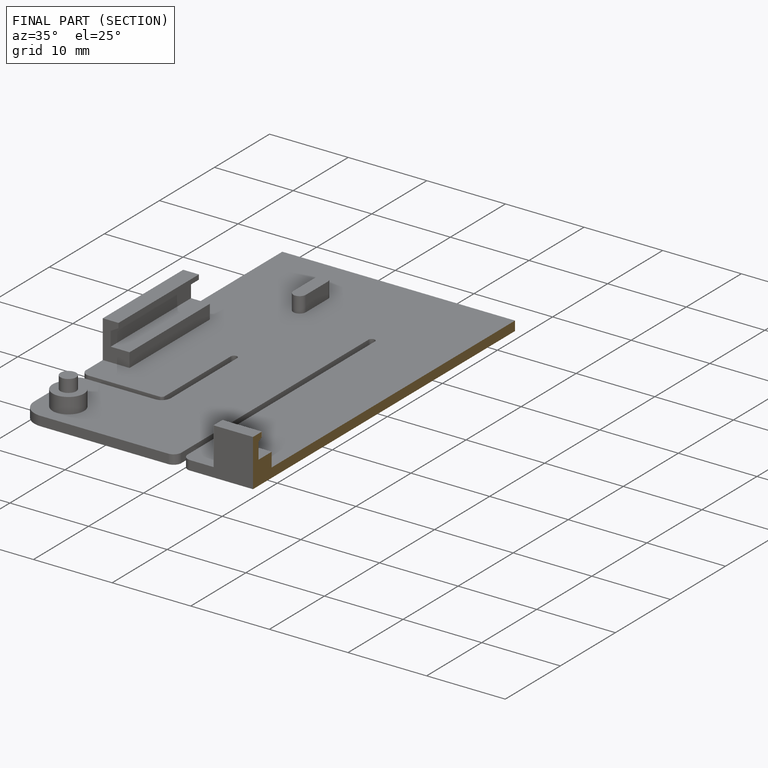
[diagram: finished part — half-section view (interior)]
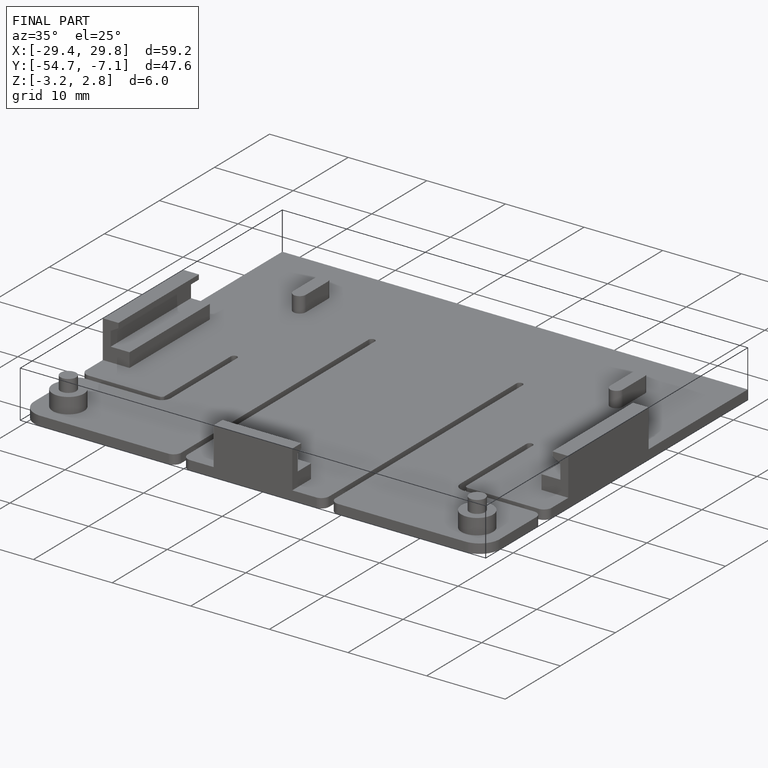
[diagram: finished part — iso view with bounding-box wireframe]
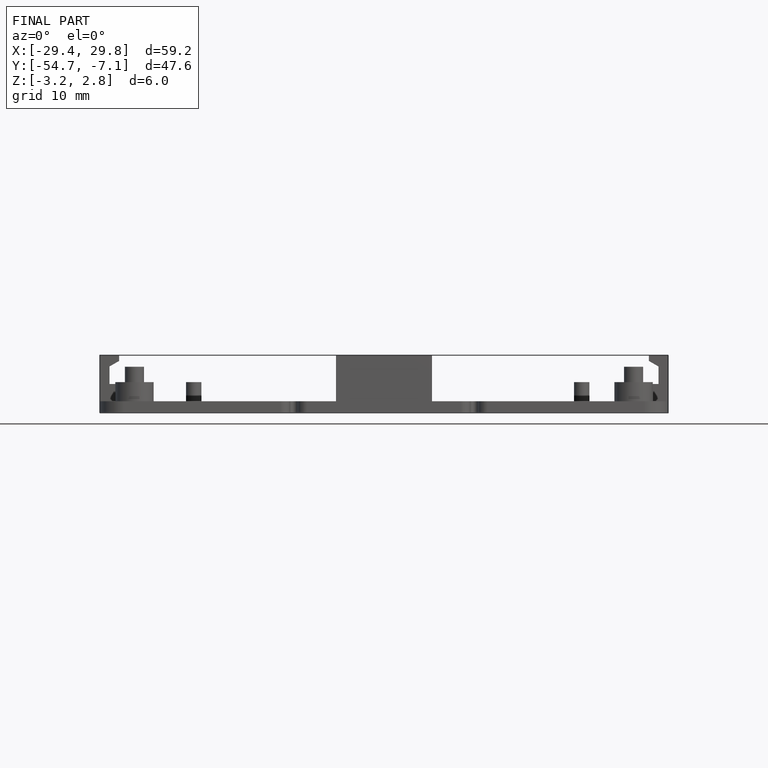
[diagram: finished part — front view with bounding-box wireframe]
